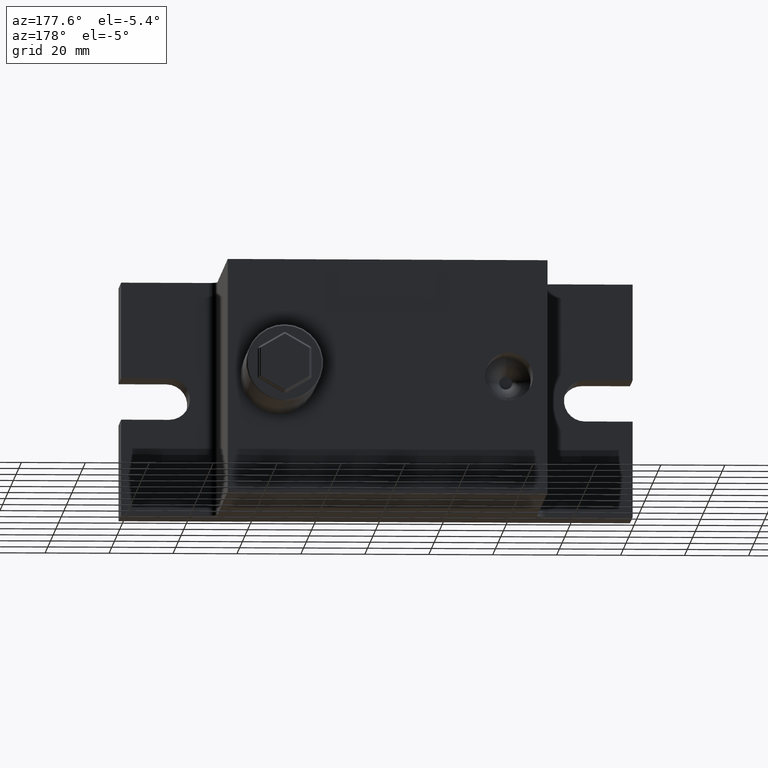
[diagram: clean part render]
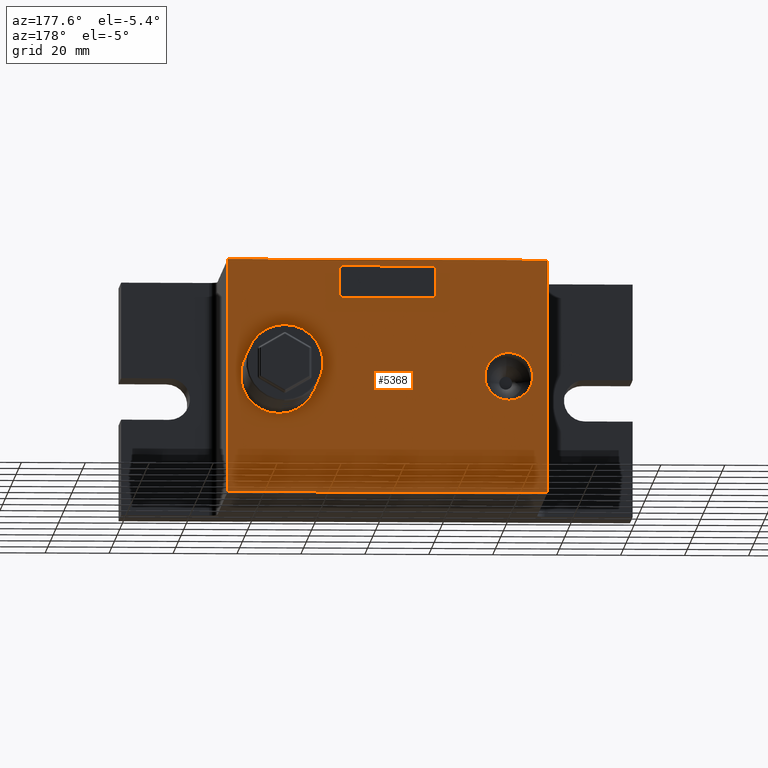
[diagram: same view with one face highlighted and labeled with its STEP entity id]
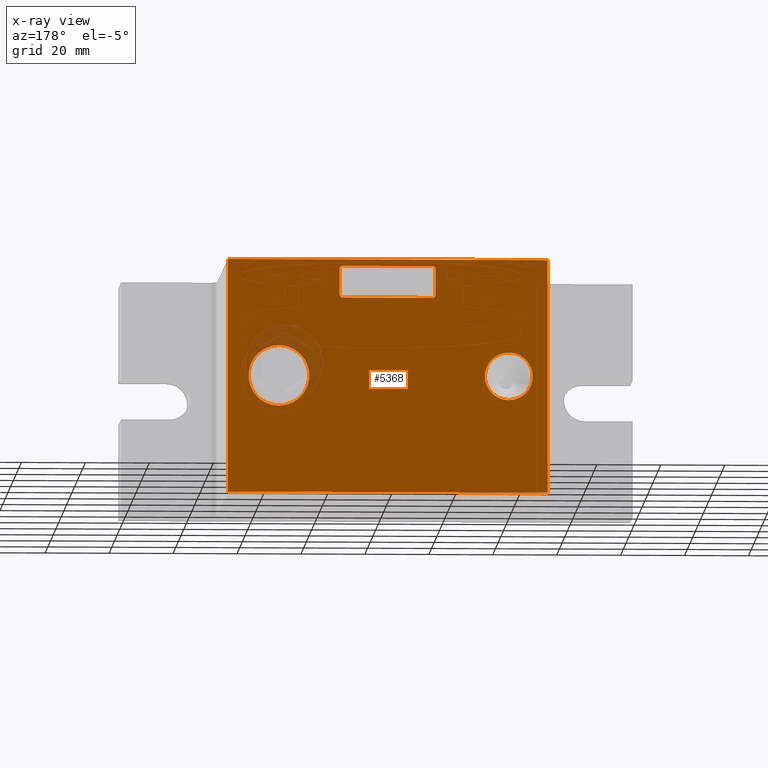
[diagram: x-ray of the same camera — body ghosted, the highlighted face saturated]
A machine part, auxiliary view. The second image highlights one B-rep face of the part: STEP entity #5368.
The next image is the same camera in x-ray: the body ghosted, the highlighted face saturated — about 3% of this face is hidden behind the body in this view.
In plain terms, the highlighted planar face has unit normal (0, -1, 0).
Its self-contained STEP definition (entity closure, byte-faithful):
#124 = EDGE_CURVE ( 'NONE', #7387, #7203, #5035, .T. ) ;
#126 = CIRCLE ( 'NONE', #13062, 0.9999999999999991100 ) ;
#219 = CARTESIAN_POINT ( 'NONE',  ( -14.00000000000000000, 50.00000000000000000, 34.49999999999992200 ) ) ;
#280 = DIRECTION ( 'NONE',  ( -0.0000000000000000000, -1.000000000000000000, -8.801438384760299300E-031 ) ) ;
#580 = ORIENTED_EDGE ( 'NONE', *, *, #3764, .T. ) ;
#679 = DIRECTION ( 'NONE',  ( -1.000000000000000000, 0.0000000000000000000, -1.627025617018336800E-030 ) ) ;
#856 = EDGE_CURVE ( 'NONE', #10515, #14549, #23690, .T. ) ;
#888 = CARTESIAN_POINT ( 'NONE',  ( -14.99999999999997900, 50.00000000000000000, 24.50000000000004300 ) ) ;
#966 = CARTESIAN_POINT ( 'NONE',  ( -37.90000000000001300, 50.00000000000000000, -3.774822690998982300E-029 ) ) ;
#1147 = LINE ( 'NONE', #21324, #11020 ) ;
#1267 = CARTESIAN_POINT ( 'NONE',  ( -50.00000000000000700, 49.99999999999983700, 36.50000000000000000 ) ) ;
#1273 = CARTESIAN_POINT ( 'NONE',  ( -50.00000000000000700, 50.00000000000000000, -36.50000000000000000 ) ) ;
#1793 = VERTEX_POINT ( 'NONE', #1267 ) ;
#1831 = EDGE_CURVE ( 'NONE', #11949, #12396, #18637, .T. ) ;
#2145 = CIRCLE ( 'NONE', #17961, 0.9999999999999991100 ) ;
#2256 = FACE_OUTER_BOUND ( 'NONE', #18509, .T. ) ;
#2494 = VECTOR ( 'NONE', #23047, 1000.000000000000000 ) ;
#2549 = CARTESIAN_POINT ( 'NONE',  ( 33.99999999999999300, 50.00000000000000000, 1.124743087522145700E-028 ) ) ;
#2832 = ORIENTED_EDGE ( 'NONE', *, *, #20280, .F. ) ;
#3271 = CARTESIAN_POINT ( 'NONE',  ( -13.99999999999997900, 50.00000000000000000, 25.50000000000003900 ) ) ;
#3349 = DIRECTION ( 'NONE',  ( 1.000000000000000000, 0.0000000000000000000, 0.0000000000000000000 ) ) ;
#3764 = EDGE_CURVE ( 'NONE', #4948, #4231, #2145, .T. ) ;
#3849 = CARTESIAN_POINT ( 'NONE',  ( 15.00000000000000000, 50.00000000000000000, 33.49999999999992200 ) ) ;
#4110 = CARTESIAN_POINT ( 'NONE',  ( 33.99999999999999300, 50.00000000000000000, -9.500000000000005300 ) ) ;
#4231 = VERTEX_POINT ( 'NONE', #12679 ) ;
#4846 = DIRECTION ( 'NONE',  ( 1.000000000000000000, 0.0000000000000000000, 0.0000000000000000000 ) ) ;
#4948 = VERTEX_POINT ( 'NONE', #219 ) ;
#5035 = LINE ( 'NONE', #19045, #22293 ) ;
#5368 = ADVANCED_FACE ( 'NONE', ( #12393, #22181, #8810, #2256 ), #6715, .F. ) ;
#5812 = CARTESIAN_POINT ( 'NONE',  ( 49.99999999999999300, 50.00000000000017100, -36.50000000000007800 ) ) ;
#5819 = CARTESIAN_POINT ( 'NONE',  ( -13.99999999999997900, 50.00000000000000000, 24.50000000000004300 ) ) ;
#6302 = CARTESIAN_POINT ( 'NONE',  ( 15.00000000000002000, 50.00000000000000000, 25.50000000000000000 ) ) ;
#6465 = CARTESIAN_POINT ( 'NONE',  ( -50.00000000000000700, 50.00000000000000000, -36.50000000000000000 ) ) ;
#6558 = EDGE_CURVE ( 'NONE', #16987, #17319, #20304, .T. ) ;
#6623 = LINE ( 'NONE', #15972, #14077 ) ;
#6715 = PLANE ( 'NONE',  #23370 ) ;
#6950 = CARTESIAN_POINT ( 'NONE',  ( 14.00000000000000000, 50.00000000000000000, 33.49999999999992200 ) ) ;
#7074 = EDGE_CURVE ( 'NONE', #23623, #1793, #13754, .T. ) ;
#7203 = VERTEX_POINT ( 'NONE', #5819 ) ;
#7387 = VERTEX_POINT ( 'NONE', #11132 ) ;
#8225 = AXIS2_PLACEMENT_3D ( 'NONE', #20319, #8928, #22133 ) ;
#8235 = DIRECTION ( 'NONE',  ( 1.734723475976787400E-016, -8.722185840458615500E-031, -1.000000000000000000 ) ) ;
#8276 = ORIENTED_EDGE ( 'NONE', *, *, #10124, .F. ) ;
#8726 = ORIENTED_EDGE ( 'NONE', *, *, #13259, .F. ) ;
#8810 = FACE_BOUND ( 'NONE', #12845, .T. ) ;
#8858 = DIRECTION ( 'NONE',  ( 1.627025617018336800E-030, 8.801438384760311500E-031, 1.000000000000000000 ) ) ;
#8928 = DIRECTION ( 'NONE',  ( 0.0000000000000000000, 1.000000000000000000, 8.801438384760299300E-031 ) ) ;
#9188 = CARTESIAN_POINT ( 'NONE',  ( 49.99999999999999300, 50.00000000000017100, -36.50000000000007800 ) ) ;
#9195 = DIRECTION ( 'NONE',  ( -0.0000000000000000000, -1.000000000000000000, -8.801438384760299300E-031 ) ) ;
#9205 = CARTESIAN_POINT ( 'NONE',  ( 33.99999999999999300, 50.00000000000000000, 1.124743087522145700E-028 ) ) ;
#9461 = ORIENTED_EDGE ( 'NONE', *, *, #6558, .T. ) ;
#9758 = EDGE_LOOP ( 'NONE', ( #18520, #580, #12198, #14176, #10490, #21006, #8276, #22856 ) ) ;
#10124 = EDGE_CURVE ( 'NONE', #10515, #21294, #6623, .T. ) ;
#10351 = CARTESIAN_POINT ( 'NONE',  ( -15.00000000000000000, 50.00000000000000000, 34.49999999999992200 ) ) ;
#10373 = AXIS2_PLACEMENT_3D ( 'NONE', #2549, #13888, #15792 ) ;
#10490 = ORIENTED_EDGE ( 'NONE', *, *, #124, .F. ) ;
#10515 = VERTEX_POINT ( 'NONE', #3849 ) ;
#10529 = CARTESIAN_POINT ( 'NONE',  ( -80.00000000000000000, 50.00000000000000000, 36.49999999999991500 ) ) ;
#10616 = DIRECTION ( 'NONE',  ( -1.627025617018336800E-030, -8.801438384760311500E-031, -1.000000000000000000 ) ) ;
#11020 = VECTOR ( 'NONE', #679, 1000.000000000000000 ) ;
#11132 = CARTESIAN_POINT ( 'NONE',  ( 14.00000000000002100, 50.00000000000000000, 24.50000000000000000 ) ) ;
#11484 = ORIENTED_EDGE ( 'NONE', *, *, #11742, .T. ) ;
#11742 = EDGE_CURVE ( 'NONE', #17319, #16987, #17151, .T. ) ;
#11949 = VERTEX_POINT ( 'NONE', #21476 ) ;
#12052 = CARTESIAN_POINT ( 'NONE',  ( 49.99999999999999300, 50.00000000000000000, 36.49999999999991500 ) ) ;
#12184 = ORIENTED_EDGE ( 'NONE', *, *, #7074, .T. ) ;
#12198 = ORIENTED_EDGE ( 'NONE', *, *, #23250, .F. ) ;
#12393 = FACE_BOUND ( 'NONE', #9758, .T. ) ;
#12396 = VERTEX_POINT ( 'NONE', #14569 ) ;
#12679 = CARTESIAN_POINT ( 'NONE',  ( -15.00000000000000000, 50.00000000000000000, 33.49999999999992200 ) ) ;
#12845 = EDGE_LOOP ( 'NONE', ( #20532, #14561 ) ) ;
#13062 = AXIS2_PLACEMENT_3D ( 'NONE', #3271, #9195, #3349 ) ;
#13259 = EDGE_CURVE ( 'NONE', #16831, #15631, #17674, .T. ) ;
#13265 = LINE ( 'NONE', #15612, #17982 ) ;
#13697 = DIRECTION ( 'NONE',  ( -1.000000000000000000, 0.0000000000000000000, -1.627025617018336800E-030 ) ) ;
#13754 = LINE ( 'NONE', #1273, #14950 ) ;
#13888 = DIRECTION ( 'NONE',  ( 0.0000000000000000000, -1.000000000000000000, -8.801438384760299300E-031 ) ) ;
#14036 = DIRECTION ( 'NONE',  ( 0.0000000000000000000, 0.0000000000000000000, 1.000000000000000000 ) ) ;
#14077 = VECTOR ( 'NONE', #8235, 1000.000000000000000 ) ;
#14176 = ORIENTED_EDGE ( 'NONE', *, *, #16158, .T. ) ;
#14210 = CARTESIAN_POINT ( 'NONE',  ( 33.99999999999999300, 50.00000000000000000, 9.500000000000005300 ) ) ;
#14372 = DIRECTION ( 'NONE',  ( 2.864033143722702200E-060, -1.000000000000000000, 8.801438384760311500E-031 ) ) ;
#14549 = VERTEX_POINT ( 'NONE', #18880 ) ;
#14561 = ORIENTED_EDGE ( 'NONE', *, *, #16997, .F. ) ;
#14569 = CARTESIAN_POINT ( 'NONE',  ( -37.90000000000001300, 50.00000000000000000, -7.500000000000000000 ) ) ;
#14659 = AXIS2_PLACEMENT_3D ( 'NONE', #966, #20100, #14036 ) ;
#14747 = AXIS2_PLACEMENT_3D ( 'NONE', #9205, #14862, #24389 ) ;
#14862 = DIRECTION ( 'NONE',  ( 0.0000000000000000000, -1.000000000000000000, -8.801438384760299300E-031 ) ) ;
#14950 = VECTOR ( 'NONE', #22309, 1000.000000000000000 ) ;
#15197 = DIRECTION ( 'NONE',  ( 1.000000000000000000, 0.0000000000000000000, 0.0000000000000000000 ) ) ;
#15306 = VECTOR ( 'NONE', #20540, 1000.000000000000000 ) ;
#15430 = DIRECTION ( 'NONE',  ( -1.000000000000000000, 0.0000000000000000000, -1.627025617018336800E-030 ) ) ;
#15528 = CARTESIAN_POINT ( 'NONE',  ( -14.00000000000000000, 50.00000000000000000, 33.49999999999992200 ) ) ;
#15612 = CARTESIAN_POINT ( 'NONE',  ( -79.99999999999982900, 50.00000000000017100, -36.50000000000007800 ) ) ;
#15631 = VERTEX_POINT ( 'NONE', #12052 ) ;
#15653 = VERTEX_POINT ( 'NONE', #21424 ) ;
#15792 = DIRECTION ( 'NONE',  ( 0.0000000000000000000, 0.0000000000000000000, -1.000000000000000000 ) ) ;
#15940 = EDGE_CURVE ( 'NONE', #4948, #14549, #22138, .T. ) ;
#15972 = CARTESIAN_POINT ( 'NONE',  ( 15.00000000000002000, 50.00000000000000000, 24.50000000000000000 ) ) ;
#16158 = EDGE_CURVE ( 'NONE', #15653, #7203, #126, .T. ) ;
#16421 = CIRCLE ( 'NONE', #19594, 0.9999999999999991100 ) ;
#16826 = AXIS2_PLACEMENT_3D ( 'NONE', #6950, #18142, #4846 ) ;
#16831 = VERTEX_POINT ( 'NONE', #5812 ) ;
#16987 = VERTEX_POINT ( 'NONE', #14210 ) ;
#16997 = EDGE_CURVE ( 'NONE', #12396, #11949, #24522, .T. ) ;
#17151 = CIRCLE ( 'NONE', #14747, 9.500000000000000000 ) ;
#17319 = VERTEX_POINT ( 'NONE', #4110 ) ;
#17493 = DIRECTION ( 'NONE',  ( -0.0000000000000000000, -1.000000000000000000, -8.801438384760299300E-031 ) ) ;
#17641 = DIRECTION ( 'NONE',  ( 1.000000000000000000, 0.0000000000000000000, 0.0000000000000000000 ) ) ;
#17674 = LINE ( 'NONE', #9188, #22426 ) ;
#17961 = AXIS2_PLACEMENT_3D ( 'NONE', #15528, #280, #15197 ) ;
#17982 = VECTOR ( 'NONE', #13697, 1000.000000000000000 ) ;
#18142 = DIRECTION ( 'NONE',  ( -0.0000000000000000000, -1.000000000000000000, -8.801438384760299300E-031 ) ) ;
#18265 = LINE ( 'NONE', #888, #15306 ) ;
#18271 = EDGE_CURVE ( 'NONE', #16831, #23623, #13265, .T. ) ;
#18509 = EDGE_LOOP ( 'NONE', ( #2832, #8726, #22953, #12184 ) ) ;
#18520 = ORIENTED_EDGE ( 'NONE', *, *, #15940, .F. ) ;
#18637 = CIRCLE ( 'NONE', #8225, 7.500000000000000000 ) ;
#18880 = CARTESIAN_POINT ( 'NONE',  ( 14.00000000000000000, 50.00000000000000000, 34.49999999999992200 ) ) ;
#18968 = EDGE_LOOP ( 'NONE', ( #9461, #11484 ) ) ;
#19045 = CARTESIAN_POINT ( 'NONE',  ( -14.99999999999997900, 50.00000000000000000, 24.50000000000004300 ) ) ;
#19400 = CARTESIAN_POINT ( 'NONE',  ( 14.00000000000002100, 50.00000000000000000, 25.50000000000000000 ) ) ;
#19594 = AXIS2_PLACEMENT_3D ( 'NONE', #19400, #17493, #17641 ) ;
#20100 = DIRECTION ( 'NONE',  ( 0.0000000000000000000, 1.000000000000000000, 8.801438384760299300E-031 ) ) ;
#20280 = EDGE_CURVE ( 'NONE', #15631, #1793, #1147, .T. ) ;
#20304 = CIRCLE ( 'NONE', #10373, 9.500000000000000000 ) ;
#20319 = CARTESIAN_POINT ( 'NONE',  ( -37.90000000000001300, 50.00000000000000000, -3.774822690998982300E-029 ) ) ;
#20532 = ORIENTED_EDGE ( 'NONE', *, *, #1831, .F. ) ;
#20540 = DIRECTION ( 'NONE',  ( 3.469446951953632900E-016, 8.713424440482142600E-031, 1.000000000000000000 ) ) ;
#21006 = ORIENTED_EDGE ( 'NONE', *, *, #24062, .T. ) ;
#21294 = VERTEX_POINT ( 'NONE', #6302 ) ;
#21324 = CARTESIAN_POINT ( 'NONE',  ( -80.00000000000000000, 50.00000000000000000, 36.49999999999991500 ) ) ;
#21424 = CARTESIAN_POINT ( 'NONE',  ( -14.99999999999997900, 50.00000000000000000, 25.50000000000003900 ) ) ;
#21476 = CARTESIAN_POINT ( 'NONE',  ( -37.90000000000001300, 50.00000000000000000, 7.500000000000000000 ) ) ;
#22133 = DIRECTION ( 'NONE',  ( 0.0000000000000000000, 0.0000000000000000000, 1.000000000000000000 ) ) ;
#22138 = LINE ( 'NONE', #10351, #2494 ) ;
#22181 = FACE_BOUND ( 'NONE', #18968, .T. ) ;
#22293 = VECTOR ( 'NONE', #15430, 1000.000000000000000 ) ;
#22309 = DIRECTION ( 'NONE',  ( 1.627025617018336800E-030, 8.801438384760311500E-031, 1.000000000000000000 ) ) ;
#22426 = VECTOR ( 'NONE', #8858, 1000.000000000000000 ) ;
#22856 = ORIENTED_EDGE ( 'NONE', *, *, #856, .T. ) ;
#22953 = ORIENTED_EDGE ( 'NONE', *, *, #18271, .T. ) ;
#23047 = DIRECTION ( 'NONE',  ( 1.000000000000000000, 0.0000000000000000000, 1.627025617018336800E-030 ) ) ;
#23250 = EDGE_CURVE ( 'NONE', #15653, #4231, #18265, .T. ) ;
#23370 = AXIS2_PLACEMENT_3D ( 'NONE', #10529, #14372, #10616 ) ;
#23623 = VERTEX_POINT ( 'NONE', #6465 ) ;
#23690 = CIRCLE ( 'NONE', #16826, 0.9999999999999991100 ) ;
#24062 = EDGE_CURVE ( 'NONE', #7387, #21294, #16421, .T. ) ;
#24389 = DIRECTION ( 'NONE',  ( 0.0000000000000000000, 0.0000000000000000000, -1.000000000000000000 ) ) ;
#24522 = CIRCLE ( 'NONE', #14659, 7.500000000000000000 ) ;